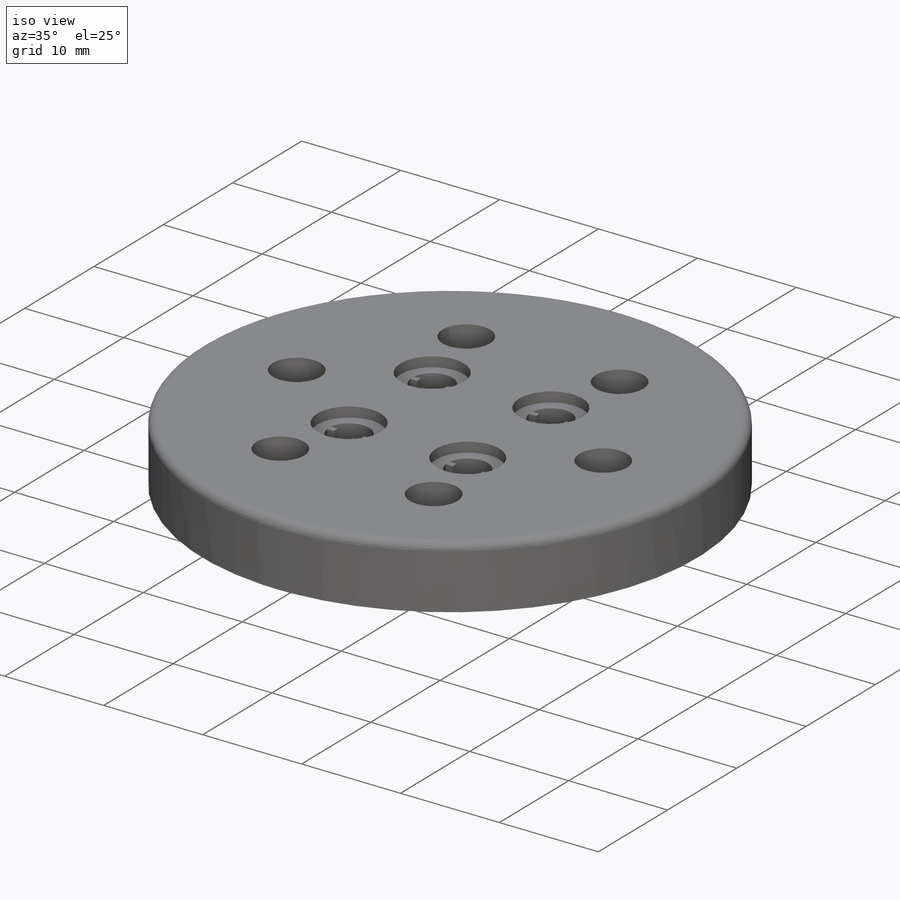
[diagram: iso view]
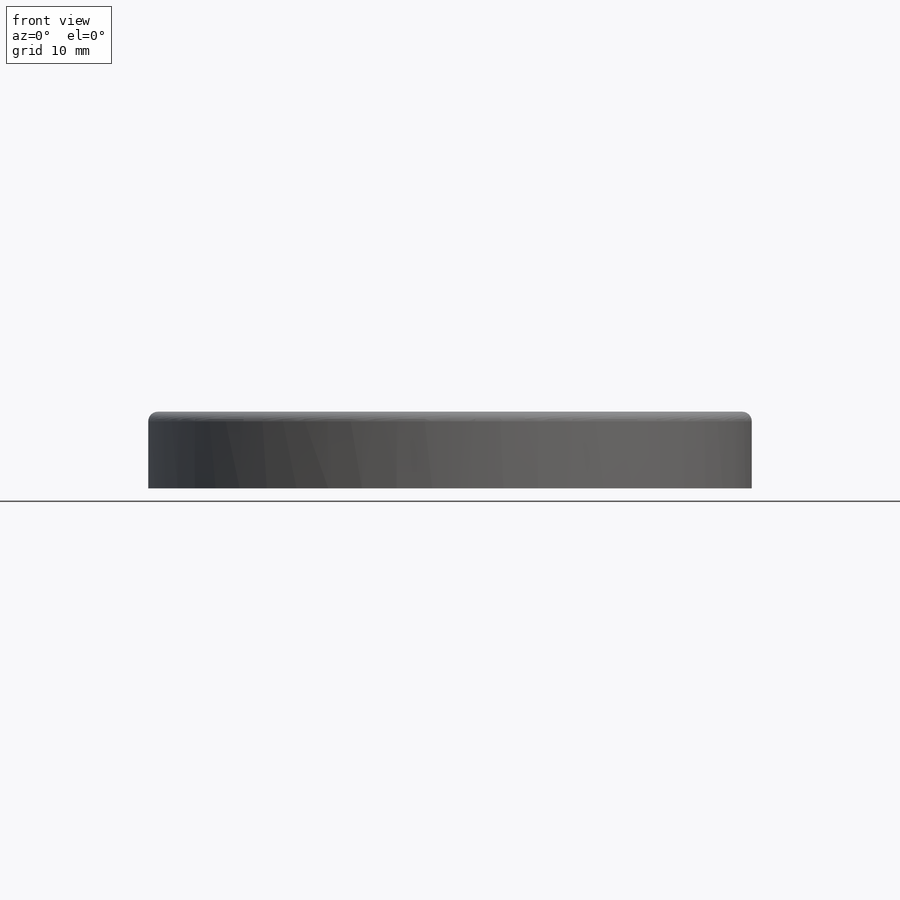
[diagram: front view]
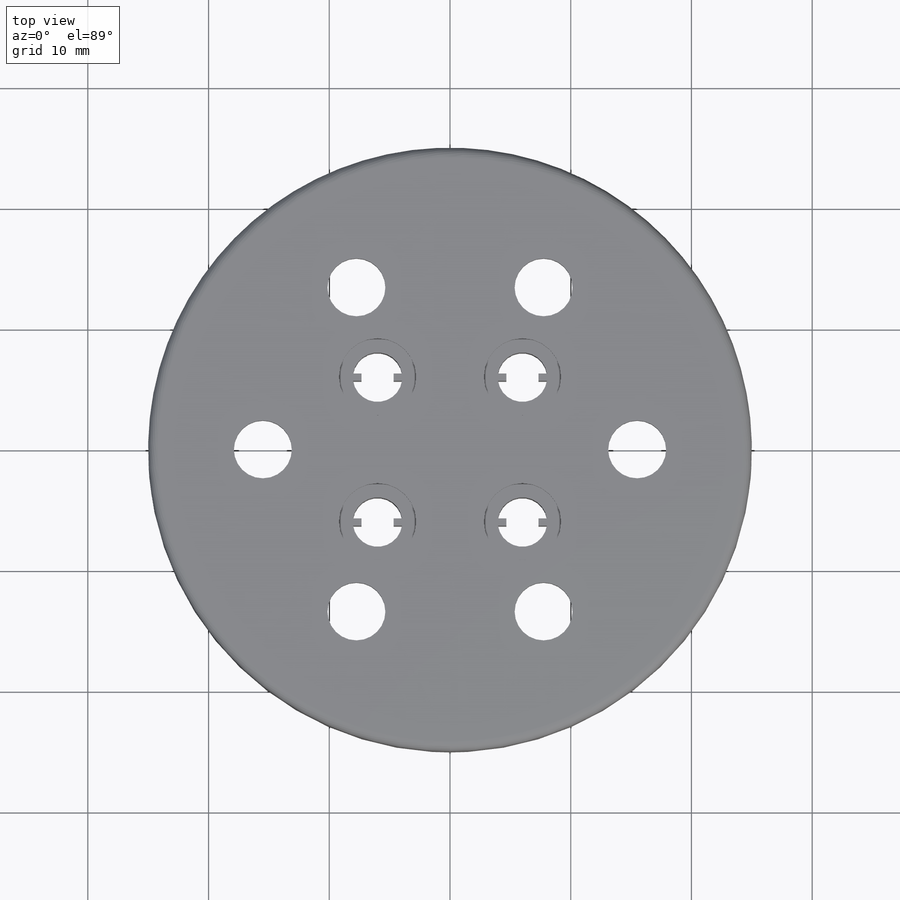
[diagram: top view]
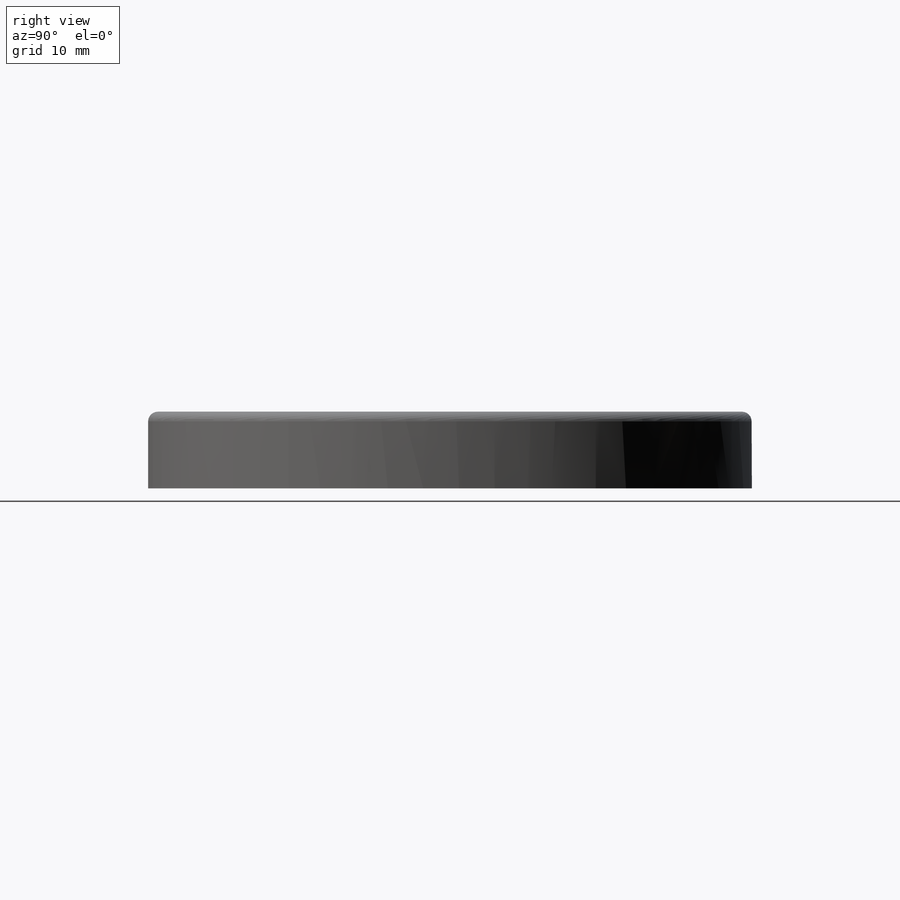
[diagram: right view]
SOLIDWORKS PART (.sldprt)
format: sldprt  version: not decoded by parser v0  size: 859,648 bytes
history: native  units: mm
features: sketch x8, cut_extrude x5, material x1, extrude x1, pattern_circular x1, fillet x1 (+13 scaffold rows collapsed)
feature tree (30):
  scaffold x13  (default folders/planes/origin — collapsed)
  material  "Material <not specified>"
  sketch  "Sketch1"  dims[c1.D1=50.0mm c1.D2=4.5mm c1.D3=15.5mm c2.D2=15.5mm]
  extrude  "Boss-Extrude1"  Depth=6.35mm
  sketch  "Sketch3"  dims[D2=4.8mm D1=15.5mm]
  cut_extrude  "Cut-Extrude3"  [1 undecoded]
  sketch  "Sketch4"  dims[D1=9.3mm]
  cut_extrude  "Cut-Extrude4"  Depth=3.8mm
  pattern_circular  "CirPattern3"  Count=6 Angle=60deg
  sketch  "Sketch5"  dims[D1=2.5mm D2=12.0mm D3=12.0mm]
  cut_extrude  "Cut-Extrude5"  [1 undecoded]
  sketch  "Sketch6"  dims[D1=5.5mm D2=7.2mm]
  sketch  "Sketch7"  dims[D1=4.0mm D2=0.6mm D3=0.7mm]
  cut_extrude  "Cut-Extrude6"  [1 undecoded]
  sketch  "Sketch8"  dims[D1=6.4mm]
  cut_extrude  "Cut-Extrude7"  Depth=1mm
  sketch  "Sketch9"
  fillet  "Fillet1"  Radius=0.8mm
decode coverage: 12 of 16 modeling features carry decoded parameters
note: 3 parameter values undecoded
summary: no parameter record found for 3 features
note: suppression state not decoded; provenance and decode notes live in map.json
